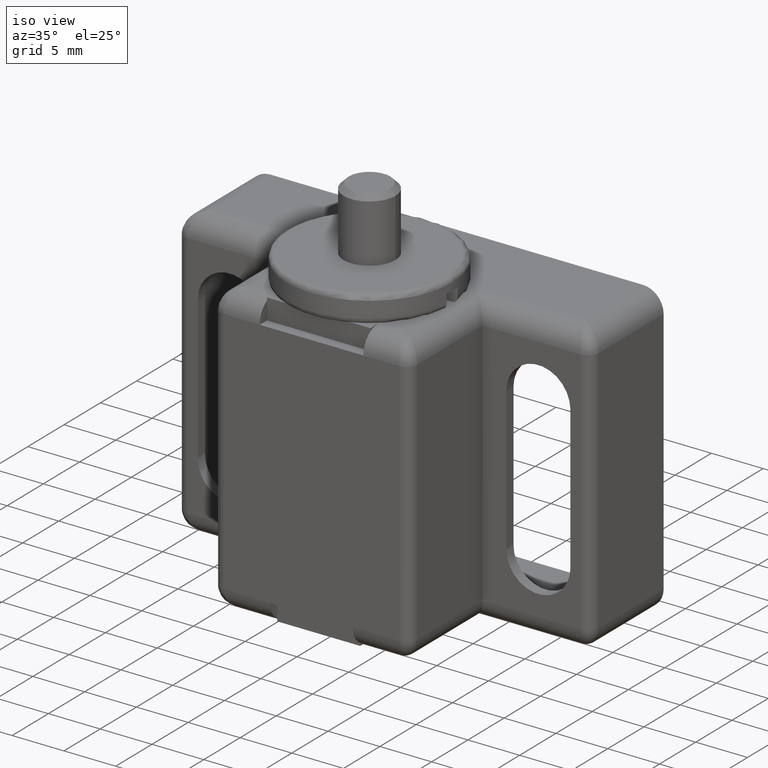
[diagram: clean part render]
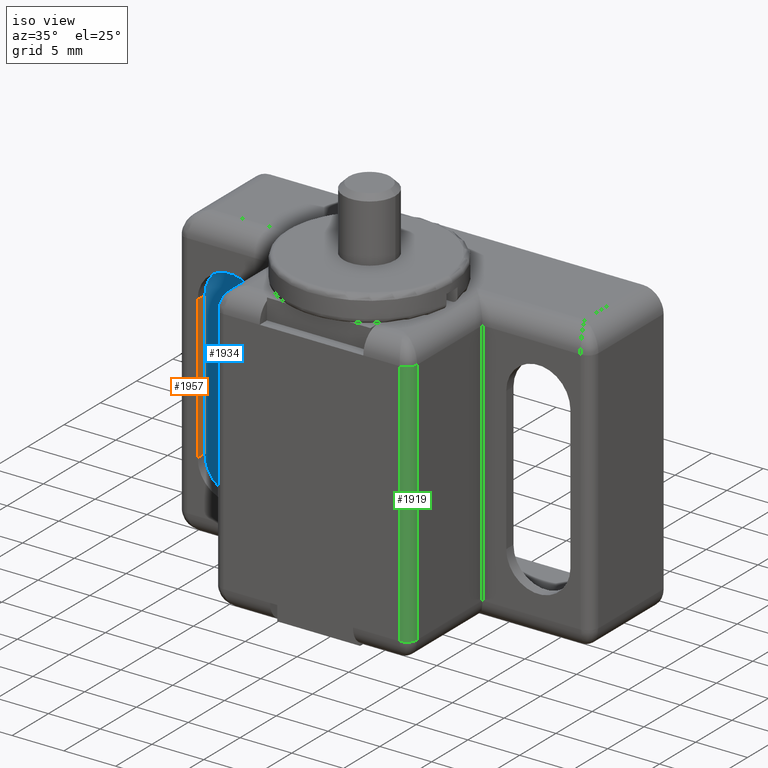
[diagram: same view with three faces highlighted in distinct colors, each labeled with its STEP entity id]
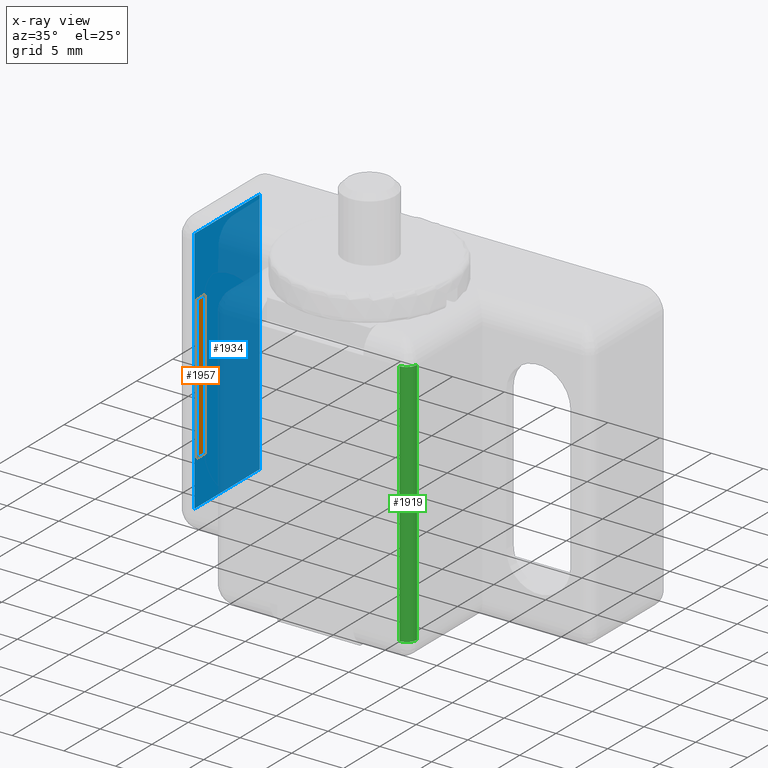
[diagram: x-ray of the same camera — body ghosted, the three highlighted faces saturated]
A machine part, iso view with three faces highlighted in distinct colors.
The next image is the same camera in x-ray (body ghosted, the three faces saturated) — at least one of them is partly hidden behind the body in this view.
Their STEP definitions:

[orange] entity #1957 — the highlighted planar face has unit normal (1, 0, -0).
#245=FACE_OUTER_BOUND('',#371,.T.);
#371=EDGE_LOOP('',(#1671,#1672,#1673,#1674));
#509=LINE('',#3861,#705);
#528=LINE('',#4177,#724);
#553=LINE('',#4246,#749);
#554=LINE('',#4247,#750);
#705=VECTOR('',#2441,13.7999969237864);
#724=VECTOR('',#2496,13.7999969237864);
#749=VECTOR('',#2581,0.999999999999964);
#750=VECTOR('',#2582,0.999999999999964);
#906=VERTEX_POINT('',#3859);
#907=VERTEX_POINT('',#3860);
#926=VERTEX_POINT('',#4175);
#927=VERTEX_POINT('',#4176);
#1131=EDGE_CURVE('',#906,#907,#509,.T.);
#1158=EDGE_CURVE('',#926,#927,#528,.T.);
#1193=EDGE_CURVE('',#907,#927,#553,.T.);
#1194=EDGE_CURVE('',#906,#926,#554,.T.);
#1671=ORIENTED_EDGE('',*,*,#1193,.T.);
#1672=ORIENTED_EDGE('',*,*,#1158,.F.);
#1673=ORIENTED_EDGE('',*,*,#1194,.F.);
#1674=ORIENTED_EDGE('',*,*,#1131,.T.);
#1843=PLANE('',#2132);
#1957=ADVANCED_FACE('',(#245),#1843,.T.);
#2132=AXIS2_PLACEMENT_3D('',#4245,#2579,#2580);
#2441=DIRECTION('',(0.,-1.,0.));
#2496=DIRECTION('',(0.,-1.,0.));
#2579=DIRECTION('center_axis',(1.,0.,0.));
#2580=DIRECTION('ref_axis',(0.,0.,-1.));
#2581=DIRECTION('',(0.,0.,-1.));
#2582=DIRECTION('',(0.,0.,-1.));
#3859=CARTESIAN_POINT('',(-36.999991563848,6.89999845561376,9.99999777995987));
#3860=CARTESIAN_POINT('',(-36.999991563848,-6.8999984681726,9.99999777995987));
#3861=CARTESIAN_POINT('',(-36.999991563848,6.89999845561376,9.99999777995987));
#4175=CARTESIAN_POINT('',(-36.999991563848,6.89999845561376,8.99999777995991));
#4176=CARTESIAN_POINT('',(-36.999991563848,-6.8999984681726,8.99999777995991));
#4177=CARTESIAN_POINT('',(-36.999991563848,6.89999845561376,8.99999777995991));
#4245=CARTESIAN_POINT('Origin',(-36.999991563848,6.89999845561376,9.99999777995987));
#4246=CARTESIAN_POINT('',(-36.999991563848,-6.8999984681726,9.99999777995987));
#4247=CARTESIAN_POINT('',(-36.999991563848,6.89999845561376,9.99999777995987));

[blue] entity #1934 — the highlighted planar face has unit normal (1, 0, -0).
#222=FACE_OUTER_BOUND('',#346,.T.);
#346=EDGE_LOOP('',(#1559,#1560,#1561,#1562));
#518=LINE('',#4146,#714);
#521=LINE('',#4160,#717);
#522=LINE('',#4163,#718);
#523=LINE('',#4164,#719);
#714=VECTOR('',#2464,8.99999778082711);
#717=VECTOR('',#2479,23.999993783888);
#718=VECTOR('',#2482,8.99999778082711);
#719=VECTOR('',#2483,23.999993783888);
#916=VERTEX_POINT('',#4144);
#917=VERTEX_POINT('',#4145);
#922=VERTEX_POINT('',#4158);
#923=VERTEX_POINT('',#4162);
#1142=EDGE_CURVE('',#916,#917,#518,.T.);
#1150=EDGE_CURVE('',#922,#916,#521,.T.);
#1151=EDGE_CURVE('',#922,#923,#522,.T.);
#1152=EDGE_CURVE('',#917,#923,#523,.T.);
#1559=ORIENTED_EDGE('',*,*,#1150,.F.);
#1560=ORIENTED_EDGE('',*,*,#1151,.T.);
#1561=ORIENTED_EDGE('',*,*,#1152,.F.);
#1562=ORIENTED_EDGE('',*,*,#1142,.F.);
#1833=PLANE('',#2098);
#1934=ADVANCED_FACE('',(#222),#1833,.T.);
#2098=AXIS2_PLACEMENT_3D('',#4161,#2480,#2481);
#2464=DIRECTION('',(0.,0.,1.));
#2479=DIRECTION('',(0.,-1.,0.));
#2480=DIRECTION('center_axis',(1.,0.,0.));
#2481=DIRECTION('ref_axis',(0.,0.,-1.));
#2482=DIRECTION('',(0.,0.,1.));
#2483=DIRECTION('',(0.,1.,0.));
#4144=CARTESIAN_POINT('',(-37.99999111984,-11.999996891944,2.511145E-015));
#4145=CARTESIAN_POINT('',(-37.99999111984,-11.999996891944,8.99999778082711));
#4146=CARTESIAN_POINT('',(-37.99999111984,-11.999996891944,2.511145E-015));
#4158=CARTESIAN_POINT('',(-37.99999111984,11.999996891944,1.041569E-015));
#4160=CARTESIAN_POINT('',(-37.99999111984,11.999996891944,1.041569E-015));
#4161=CARTESIAN_POINT('Origin',(-37.99999111984,-13.999996891944,8.99999800196392));
#4162=CARTESIAN_POINT('',(-37.99999111984,11.999996891944,8.99999778082711));
#4163=CARTESIAN_POINT('',(-37.99999111984,11.999996891944,1.041569E-015));
#4164=CARTESIAN_POINT('',(-37.99999111984,-11.999996891944,8.99999777995991));

[green] entity #1919 — the highlighted cylindrical surface (edge-blend (fillet) strip) has radius 1 mm, axis along (-0, 0, -1).
#79=CYLINDRICAL_SURFACE('',#2077,0.999999777995992);
#137=CIRCLE('',#2057,0.999999761581421);
#147=CIRCLE('',#2078,0.999999761581421);
#207=FACE_OUTER_BOUND('',#329,.T.);
#329=EDGE_LOOP('',(#1466,#1467,#1468,#1469));
#501=LINE('',#3803,#697);
#502=LINE('',#3805,#698);
#697=VECTOR('',#2419,23.999993783888);
#698=VECTOR('',#2422,23.999993783888);
#847=VERTEX_POINT('',#2847);
#864=VERTEX_POINT('',#2949);
#879=VERTEX_POINT('',#3083);
#904=VERTEX_POINT('',#3802);
#1085=EDGE_CURVE('',#879,#847,#137,.T.);
#1120=EDGE_CURVE('',#879,#904,#501,.T.);
#1121=EDGE_CURVE('',#904,#864,#147,.T.);
#1122=EDGE_CURVE('',#847,#864,#502,.T.);
#1466=ORIENTED_EDGE('',*,*,#1120,.T.);
#1467=ORIENTED_EDGE('',*,*,#1121,.T.);
#1468=ORIENTED_EDGE('',*,*,#1122,.F.);
#1469=ORIENTED_EDGE('',*,*,#1085,.F.);
#1919=ADVANCED_FACE('',(#207),#79,.T.);
#2057=AXIS2_PLACEMENT_3D('',#3342,#2358,#2359);
#2077=AXIS2_PLACEMENT_3D('',#3801,#2417,#2418);
#2078=AXIS2_PLACEMENT_3D('',#3804,#2420,#2421);
#2358=DIRECTION('center_axis',(0.,-1.,0.));
#2359=DIRECTION('ref_axis',(1.,0.,0.));
#2417=DIRECTION('center_axis',(0.,-1.,0.));
#2418=DIRECTION('ref_axis',(1.,0.,0.));
#2419=DIRECTION('',(0.,1.,0.));
#2420=DIRECTION('center_axis',(0.,-1.,0.));
#2421=DIRECTION('ref_axis',(1.,0.,0.));
#2422=DIRECTION('',(0.,1.,0.));
#2847=CARTESIAN_POINT('',(-10.4999974385816,-11.999996891944,19.9999955599202));
#2949=CARTESIAN_POINT('',(-10.4999974380167,11.999996891944,19.9999955599202));
#3083=CARTESIAN_POINT('',(-9.49999766895807,-11.999996891944,18.9999957902967));
#3342=CARTESIAN_POINT('Origin',(-10.4999974305395,-11.999996891944,18.9999957983388));
#3801=CARTESIAN_POINT('Origin',(-10.4999974469541,-13.999996891944,18.9999957819242));
#3802=CARTESIAN_POINT('',(-9.49999766895806,11.999996891944,18.9999957908616));
#3803=CARTESIAN_POINT('',(-9.49999766895806,-11.999996891944,18.9999957819242));
#3804=CARTESIAN_POINT('Origin',(-10.4999974305395,11.999996891944,18.9999957983388));
#3805=CARTESIAN_POINT('',(-10.4999974469541,-11.999996891944,19.9999955599202));